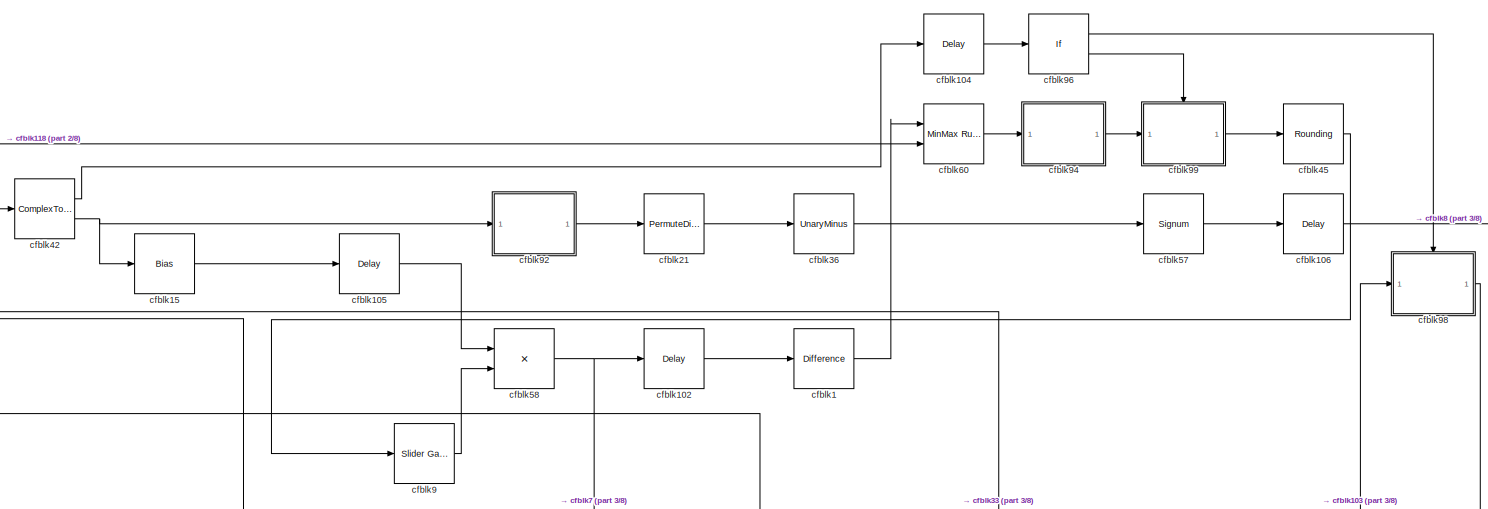
[diagram: root canvas - part 1/8, top center region]
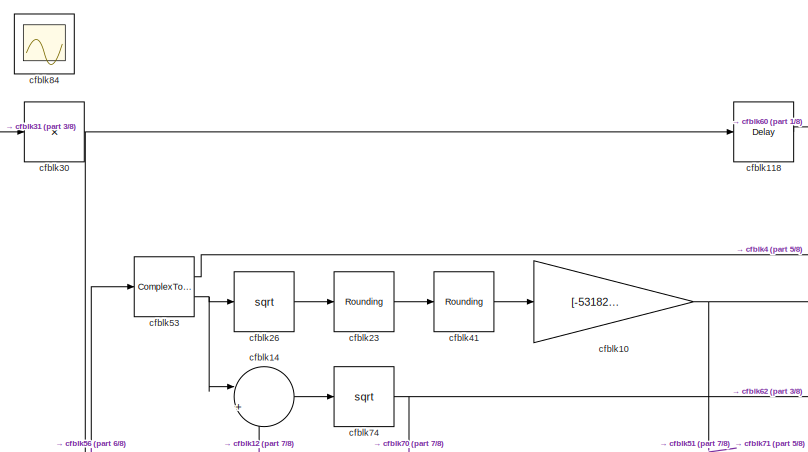
[diagram: root canvas - part 2/8, top left region]
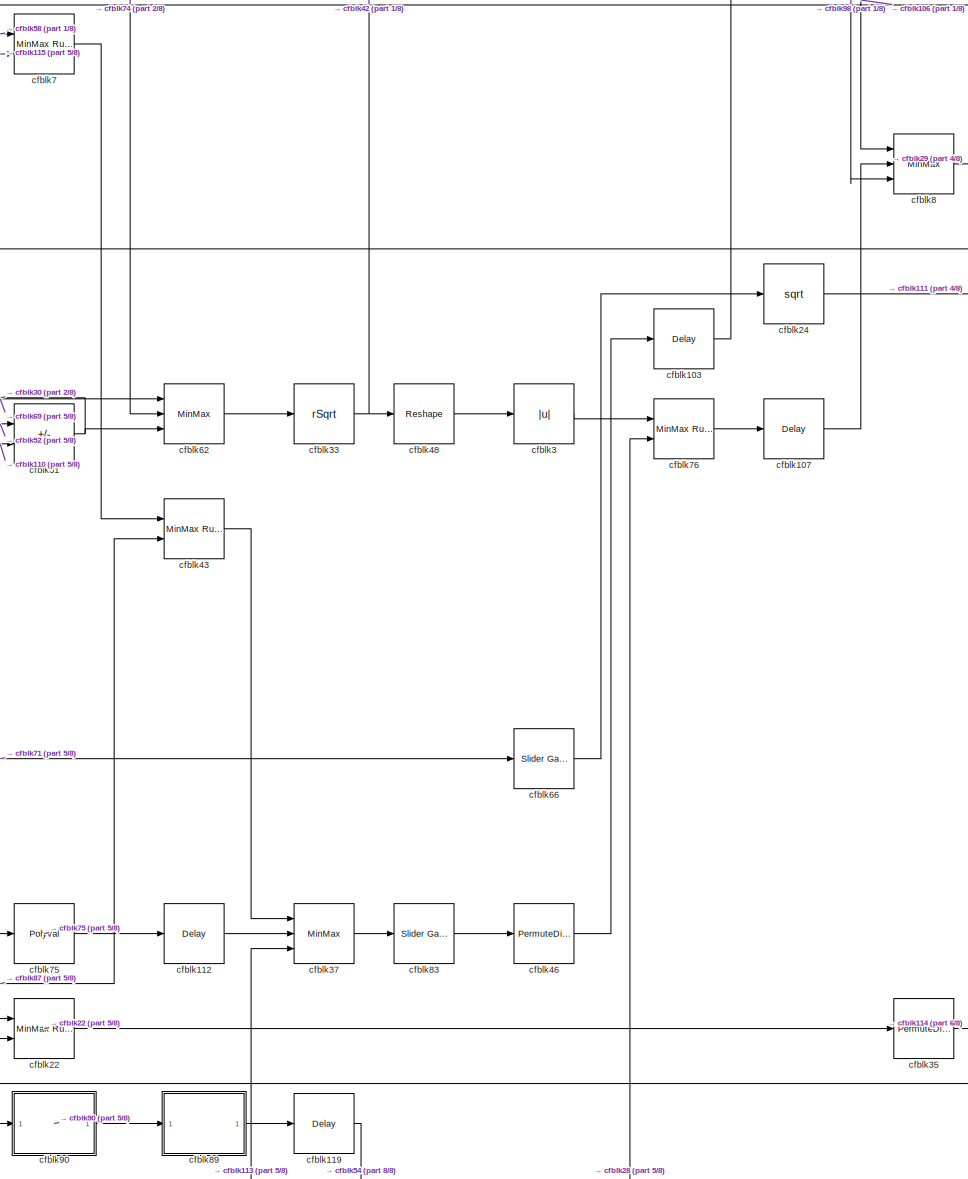
[diagram: root canvas - part 3/8, central region]
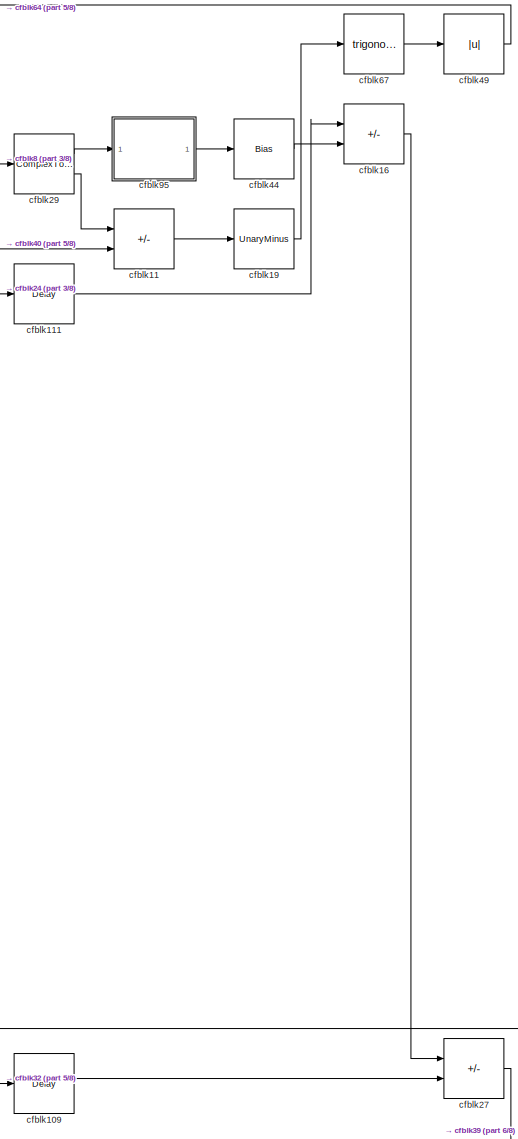
[diagram: root canvas - part 4/8, middle right region]
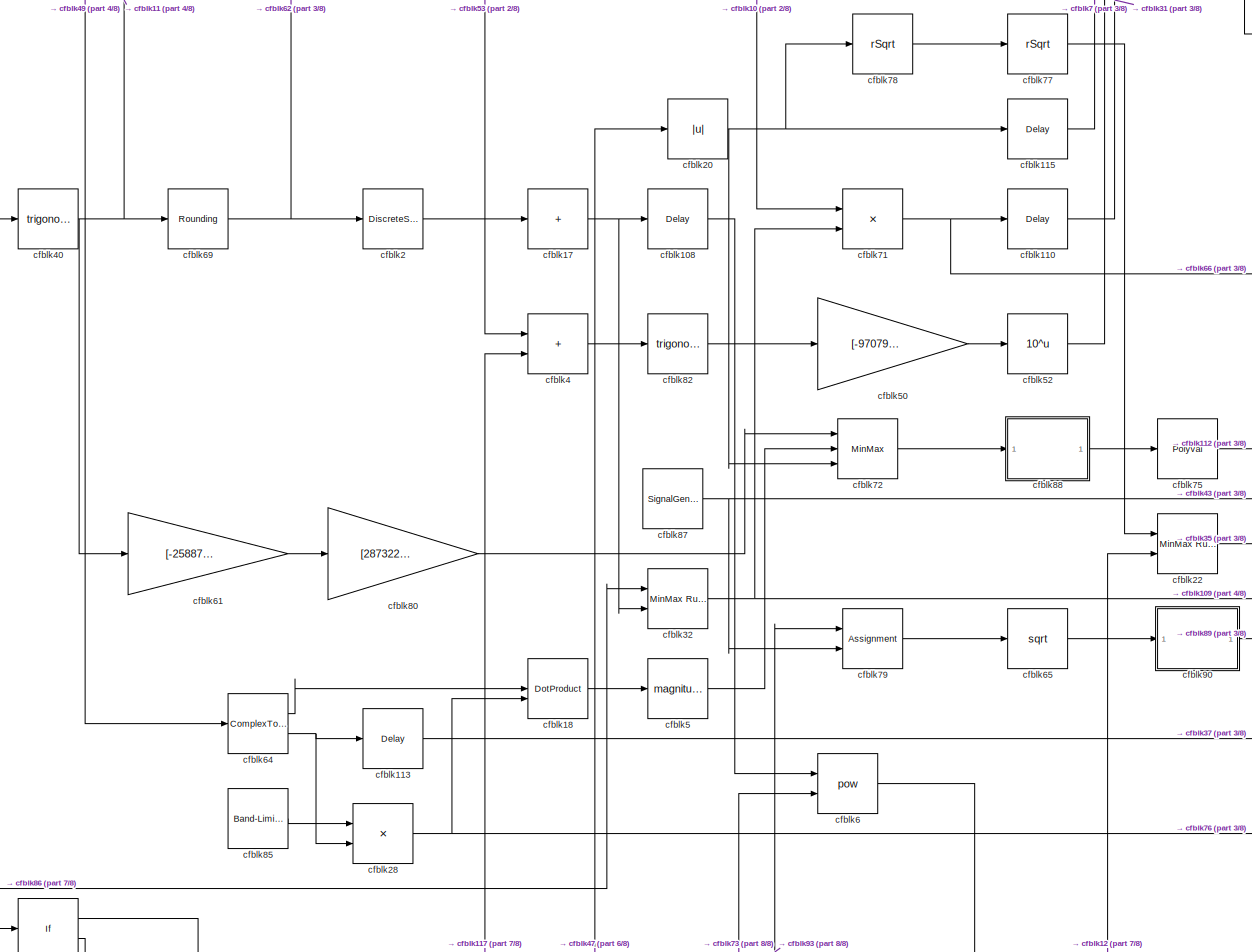
[diagram: root canvas - part 5/8, central region]
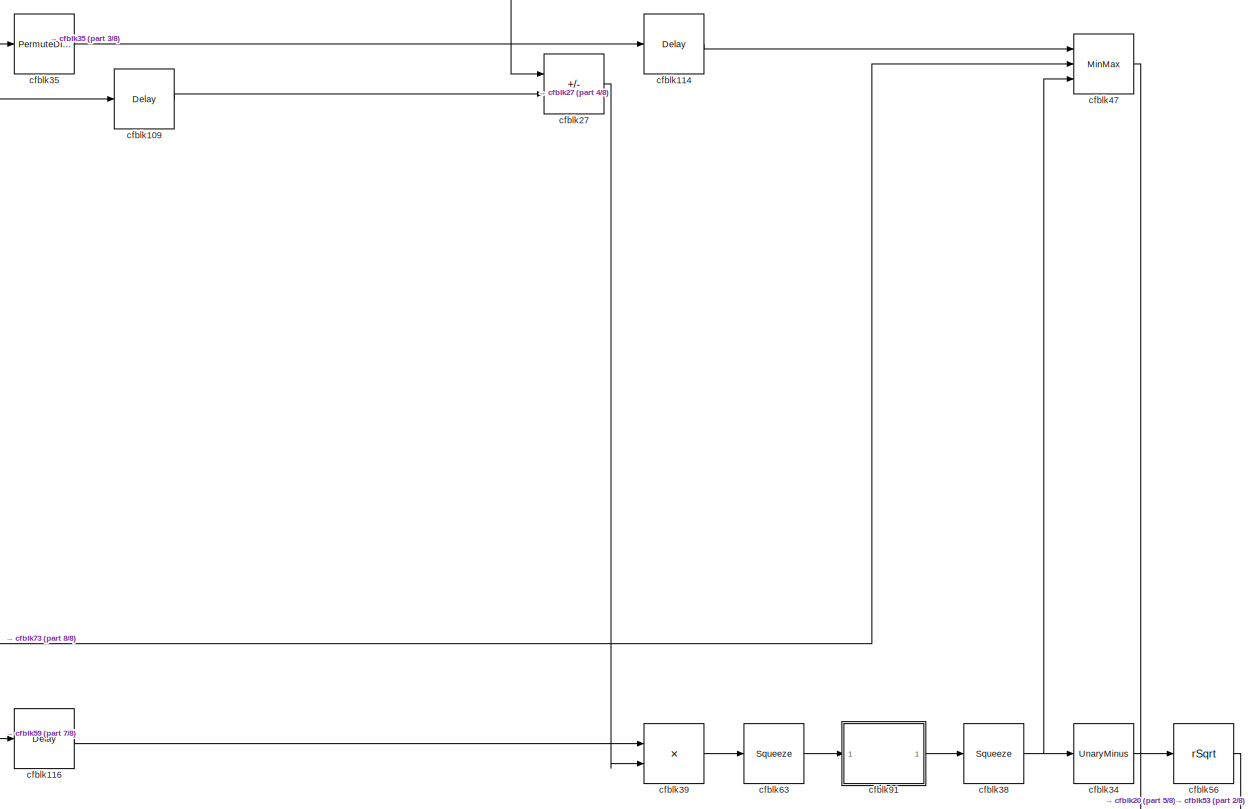
[diagram: root canvas - part 6/8, bottom right region]
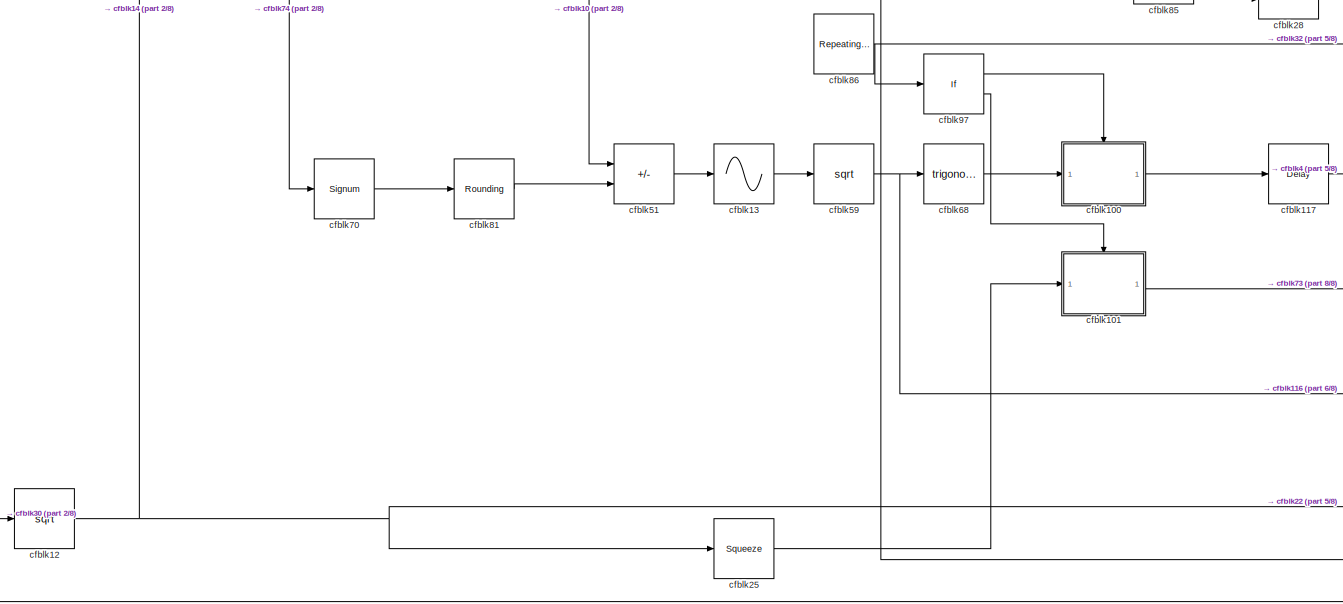
[diagram: root canvas - part 7/8, bottom left region]
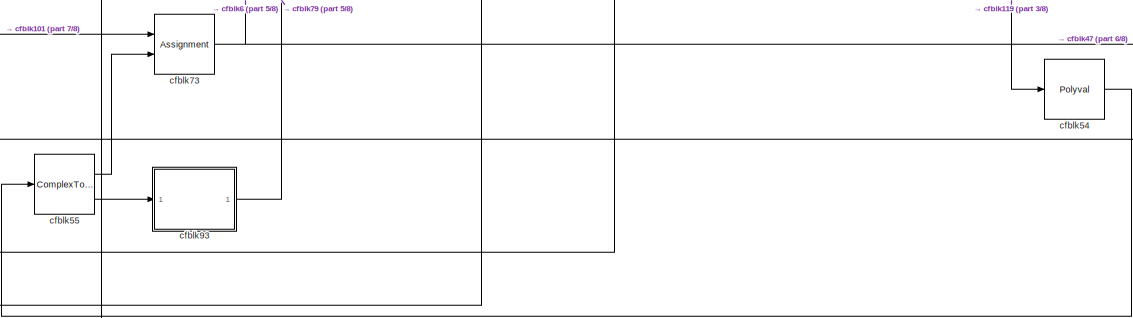
[diagram: root canvas - part 8/8, bottom center region]
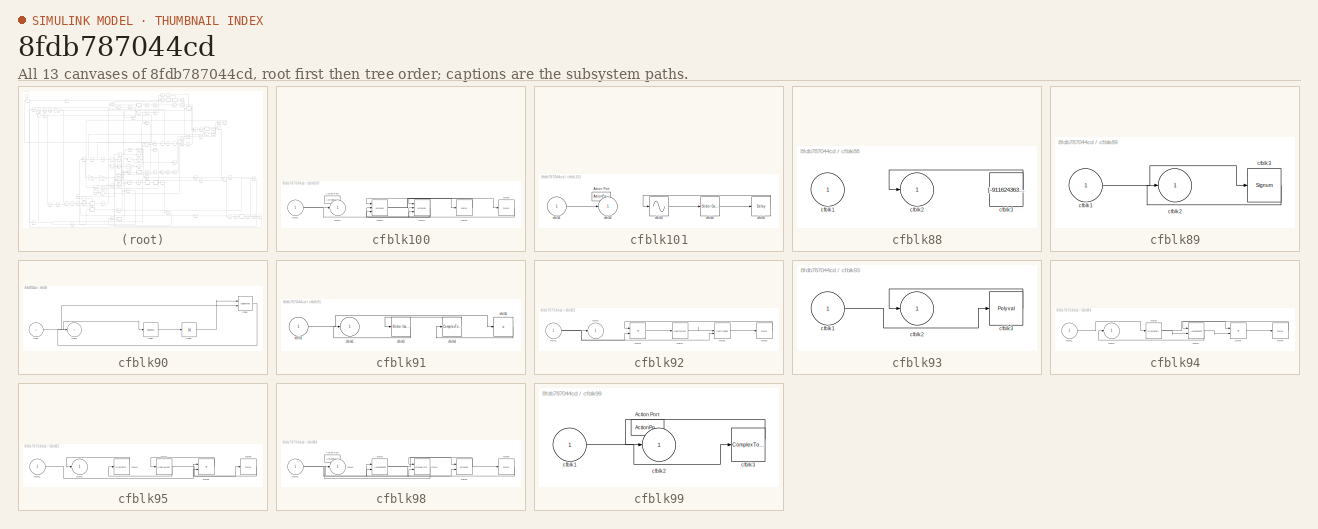
[diagram: thumbnail index - all 13 canvases of the model, root first then tree order]
MODEL slx_8fdb787044cd
KIND model
CONFIG AbsTol = auto
CONFIG EnableMultiTasking = off
CONFIG FixedStep = auto
CONFIG MaxStep = auto
CONFIG MinStep = auto
CONFIG RelTol = 1e-3
CONFIG SampleTimeConstraint = Unconstrained
CONFIG SolverName = VariableStepAuto
CONFIG StartTime = 0.0
CONFIG StopTime = 10.0
BLOCK [Reference] cfblk1  REF=simulink/Discrete/Difference
  Ports = [1, 1]
  SourceBlock = simulink/Discrete/Difference
  SourceProductBaseCode = SL
  SourceType = Difference
BLOCK [Gain] cfblk10
  Gain = [-531822452.645872]
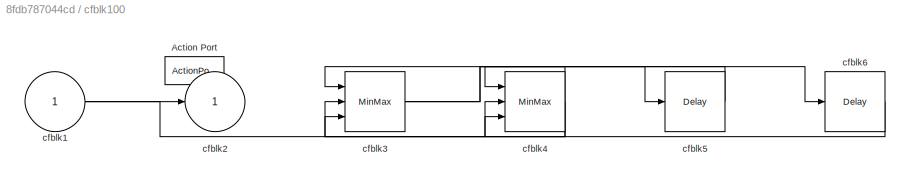
BLOCK [SubSystem] cfblk100
  Ports = [1, 1, 0, 0, 0, 0, 0, 1]
  RequestExecContextInheritance = off
  TreatAsAtomicUnit = on
BLOCK [ActionPort] cfblk100/Action Port
  ActionPortLabel = if(u1 >= 0)
BLOCK [Inport] cfblk100/cfblk1
BLOCK [Outport] cfblk100/cfblk2
BLOCK [MinMax] cfblk100/cfblk3
  Inputs = 3
  Ports = [3, 1]
BLOCK [MinMax] cfblk100/cfblk4
  Function = max
  Inputs = 3
  Ports = [3, 1]
BLOCK [Delay] cfblk100/cfblk5
  InputPortMap = u0
  Ports = [1, 1]
BLOCK [Delay] cfblk100/cfblk6
  InputPortMap = u0
  Ports = [1, 1]
BLOCK [SubSystem] cfblk101
  Ports = [1, 1, 0, 0, 0, 0, 0, 1]
  RequestExecContextInheritance = off
  TreatAsAtomicUnit = on
BLOCK [ActionPort] cfblk101/Action Port
  ActionPortLabel = else
BLOCK [Inport] cfblk101/cfblk1
BLOCK [Outport] cfblk101/cfblk2
BLOCK [Sin] cfblk101/cfblk3
  Ports = [1, 1]
  SampleTime = 0
  TimeSource = Use external signal
BLOCK [Reference] cfblk101/cfblk4  REF=simulink/Math
Operations/Slider
Gain
  Ports = [1, 1]
  SourceBlock = simulink/Math\nOperations/Slider\nGain
  SourceProductBaseCode = SL
  SourceType = Slider Gain
BLOCK [Delay] cfblk101/cfblk5
  InputPortMap = u0
  Ports = [1, 1]
BLOCK [Delay] cfblk102
  InputPortMap = u0
  Ports = [1, 1]
  SampleTime = 1
BLOCK [Delay] cfblk103
  InputPortMap = u0
  Ports = [1, 1]
  SampleTime = 1
BLOCK [Delay] cfblk104
  InputPortMap = u0
  Ports = [1, 1]
  SampleTime = 1
BLOCK [Delay] cfblk105
  InputPortMap = u0
  Ports = [1, 1]
  SampleTime = 1
BLOCK [Delay] cfblk106
  InputPortMap = u0
  Ports = [1, 1]
  SampleTime = 1
BLOCK [Delay] cfblk107
  InputPortMap = u0
  Ports = [1, 1]
  SampleTime = 1
BLOCK [Delay] cfblk108
  InputPortMap = u0
  Ports = [1, 1]
  SampleTime = 1
BLOCK [Delay] cfblk109
  InputPortMap = u0
  Ports = [1, 1]
  SampleTime = 1
BLOCK [Sum] cfblk11
  IconShape = rectangular
  Inputs = +-
  Ports = [2, 1]
BLOCK [Delay] cfblk110
  InputPortMap = u0
  Ports = [1, 1]
  SampleTime = 1
BLOCK [Delay] cfblk111
  InputPortMap = u0
  Ports = [1, 1]
  SampleTime = 1
BLOCK [Delay] cfblk112
  InputPortMap = u0
  Ports = [1, 1]
  SampleTime = 1
BLOCK [Delay] cfblk113
  InputPortMap = u0
  Ports = [1, 1]
  SampleTime = 1
BLOCK [Delay] cfblk114
  InputPortMap = u0
  Ports = [1, 1]
  SampleTime = 1
BLOCK [Delay] cfblk115
  InputPortMap = u0
  Ports = [1, 1]
  SampleTime = 1
BLOCK [Delay] cfblk116
  InputPortMap = u0
  Ports = [1, 1]
  SampleTime = 1
BLOCK [Delay] cfblk117
  InputPortMap = u0
  Ports = [1, 1]
  SampleTime = 1
BLOCK [Delay] cfblk118
  InputPortMap = u0
  Ports = [1, 1]
  SampleTime = 1
BLOCK [Delay] cfblk119
  InputPortMap = u0
  Ports = [1, 1]
  SampleTime = 1
BLOCK [Sqrt] cfblk12
BLOCK [Sin] cfblk13
  Ports = [1, 1]
  SampleTime = 0
  TimeSource = Use external signal
BLOCK [Sum] cfblk14
  Inputs = |++
  Ports = [2, 1]
BLOCK [Bias] cfblk15
  Bias = [104830006.738759]
  SaturateOnIntegerOverflow = off
BLOCK [Sum] cfblk16
  IconShape = rectangular
  Inputs = +-
  Ports = [2, 1]
BLOCK [Sum] cfblk17
  IconShape = rectangular
  Inputs = +
  Ports = [1, 1]
BLOCK [DotProduct] cfblk18
  OutDataTypeStr = Inherit: Inherit via internal rule
BLOCK [UnaryMinus] cfblk19
BLOCK [DiscreteStateSpace] cfblk2
BLOCK [Abs] cfblk20
  SaturateOnIntegerOverflow = off
BLOCK [PermuteDimensions] cfblk21
BLOCK [Reference] cfblk22  REF=simulink/Math
Operations/MinMax
Running
Resettable
  Ports = [2, 1]
  SourceBlock = simulink/Math\nOperations/MinMax\nRunning\nResettable
  SourceProductBaseCode = SL
  SourceType = MinMax Running Resettable
BLOCK [Rounding] cfblk23
BLOCK [Sqrt] cfblk24
BLOCK [Squeeze] cfblk25
BLOCK [Sqrt] cfblk26
BLOCK [Sum] cfblk27
  IconShape = rectangular
  Inputs = --
  Ports = [2, 1]
BLOCK [Product] cfblk28
  Inputs = **
  Ports = [2, 1]
BLOCK [ComplexToRealImag] cfblk29
  Ports = [1, 2]
BLOCK [Abs] cfblk3
  SaturateOnIntegerOverflow = off
BLOCK [Product] cfblk30
  Inputs = *
  Ports = [1, 1]
BLOCK [Sum] cfblk31
  IconShape = rectangular
  Inputs = -+
  Ports = [2, 1]
BLOCK [Reference] cfblk32  REF=simulink/Math
Operations/MinMax
Running
Resettable
  Ports = [2, 1]
  SourceBlock = simulink/Math\nOperations/MinMax\nRunning\nResettable
  SourceProductBaseCode = SL
  SourceType = MinMax Running Resettable
BLOCK [Sqrt] cfblk33
  AlgorithmType = Newton-Raphson
  Operator = rSqrt
BLOCK [UnaryMinus] cfblk34
BLOCK [PermuteDimensions] cfblk35
BLOCK [UnaryMinus] cfblk36
BLOCK [MinMax] cfblk37
  Function = max
  Inputs = 3
  Ports = [3, 1]
BLOCK [Squeeze] cfblk38
BLOCK [Product] cfblk39
  Ports = [2, 1]
BLOCK [Sum] cfblk4
  IconShape = rectangular
  Ports = [2, 1]
BLOCK [Trigonometry] cfblk40
  Ports = [1, 1]
BLOCK [Rounding] cfblk41
BLOCK [ComplexToRealImag] cfblk42
  Ports = [1, 2]
BLOCK [Reference] cfblk43  REF=simulink/Math
Operations/MinMax
Running
Resettable
  Ports = [2, 1]
  SourceBlock = simulink/Math\nOperations/MinMax\nRunning\nResettable
  SourceProductBaseCode = SL
  SourceType = MinMax Running Resettable
BLOCK [Bias] cfblk44
  Bias = [46526396.097413]
  SaturateOnIntegerOverflow = off
BLOCK [Rounding] cfblk45
BLOCK [PermuteDimensions] cfblk46
BLOCK [MinMax] cfblk47
  Function = max
  Inputs = 3
  Ports = [3, 1]
BLOCK [Reshape] cfblk48
  Ports = [1, 1]
BLOCK [Abs] cfblk49
  SaturateOnIntegerOverflow = off
BLOCK [Math] cfblk5
  Operator = magnitude^2
  Ports = [1, 1]
BLOCK [Gain] cfblk50
  Gain = [-97079901.726537]
BLOCK [Sum] cfblk51
  IconShape = rectangular
  Inputs = +-
  Ports = [2, 1]
BLOCK [Math] cfblk52
  Operator = 10^u
  Ports = [1, 1]
BLOCK [ComplexToRealImag] cfblk53
  Ports = [1, 2]
BLOCK [Polyval] cfblk54
  Coefs = [ +2.081618890e-019, -1.441693666e-014, +4.719686976e-010, -8.536869453e-006, +1.621573104e-001, -8.087801117e+001 ]
BLOCK [ComplexToMagnitudeAngle] cfblk55
  Ports = [1, 2]
BLOCK [Sqrt] cfblk56
  AlgorithmType = Newton-Raphson
  Operator = rSqrt
BLOCK [Signum] cfblk57
BLOCK [Product] cfblk58
  Ports = [2, 1]
BLOCK [Sqrt] cfblk59
BLOCK [Math] cfblk6
  Operator = pow
  Ports = [2, 1]
BLOCK [Reference] cfblk60  REF=simulink/Math
Operations/MinMax
Running
Resettable
  Ports = [2, 1]
  SourceBlock = simulink/Math\nOperations/MinMax\nRunning\nResettable
  SourceProductBaseCode = SL
  SourceType = MinMax Running Resettable
BLOCK [Gain] cfblk61
  Gain = [-258877291.943940]
BLOCK [MinMax] cfblk62
  Inputs = 3
  Ports = [3, 1]
BLOCK [Squeeze] cfblk63
BLOCK [ComplexToMagnitudeAngle] cfblk64
  Ports = [1, 2]
BLOCK [Sqrt] cfblk65
BLOCK [Reference] cfblk66  REF=simulink/Math
Operations/Slider
Gain
  Ports = [1, 1]
  SourceBlock = simulink/Math\nOperations/Slider\nGain
  SourceProductBaseCode = SL
  SourceType = Slider Gain
BLOCK [Trigonometry] cfblk67
  Ports = [1, 1]
BLOCK [Trigonometry] cfblk68
  Ports = [1, 1]
BLOCK [Rounding] cfblk69
BLOCK [Reference] cfblk7  REF=simulink/Math
Operations/MinMax
Running
Resettable
  Ports = [2, 1]
  SourceBlock = simulink/Math\nOperations/MinMax\nRunning\nResettable
  SourceProductBaseCode = SL
  SourceType = MinMax Running Resettable
BLOCK [Signum] cfblk70
BLOCK [Product] cfblk71
  Inputs = **
  Ports = [2, 1]
BLOCK [MinMax] cfblk72
  Inputs = 3
  Ports = [3, 1]
BLOCK [Assignment] cfblk73
  DiagnosticForDimensions = Warning
  IndexOptions = Index vector (dialog)
  Indices = 1
  OutputSizes = 1
  Ports = [2, 1]
BLOCK [Sqrt] cfblk74
BLOCK [Polyval] cfblk75
  Coefs = [ +2.081618890e-019, -1.441693666e-014, +4.719686976e-010, -8.536869453e-006, +1.621573104e-001, -8.087801117e+001 ]
BLOCK [Reference] cfblk76  REF=simulink/Math
Operations/MinMax
Running
Resettable
  Ports = [2, 1]
  SourceBlock = simulink/Math\nOperations/MinMax\nRunning\nResettable
  SourceProductBaseCode = SL
  SourceType = MinMax Running Resettable
BLOCK [Sqrt] cfblk77
  AlgorithmType = Newton-Raphson
  Operator = rSqrt
BLOCK [Sqrt] cfblk78
  AlgorithmType = Newton-Raphson
  Operator = rSqrt
BLOCK [Assignment] cfblk79
  DiagnosticForDimensions = Warning
  IndexOptions = Index vector (dialog)
  Indices = 1
  OutputSizes = 1
  Ports = [2, 1]
BLOCK [MinMax] cfblk8
  Inputs = 3
  Ports = [3, 1]
BLOCK [Gain] cfblk80
  Gain = [287322177.333645]
BLOCK [Rounding] cfblk81
BLOCK [Trigonometry] cfblk82
  Ports = [1, 1]
BLOCK [Reference] cfblk83  REF=simulink/Math
Operations/Slider
Gain
  Ports = [1, 1]
  SourceBlock = simulink/Math\nOperations/Slider\nGain
  SourceProductBaseCode = SL
  SourceType = Slider Gain
BLOCK [Scope] cfblk84
  Floating = on
  NumInputPorts = 1
  Ports = []
  ScopeSpecificationString = Simulink.scopes.TimeScopeBlockCfg('CurrentConfiguration', extmgr.ConfigurationSet(extmgr.Configuration('Core','General UI',true),extmgr.Configuration('Core','Source UI',true),extmgr.Configuration('Sources','WiredSimulink',true),extmgr.Configuration('Visuals','Time Domain',true),extmgr.Configuration('Tools','Plot Navigation',true),extmgr.Configuration('Tools','Measurements',true)),'Version','2021b'...<+1ch>
BLOCK [Reference] cfblk85  REF=simulink/Sources/Band-Limited
White Noise
  Ports = [0, 1]
  SourceBlock = simulink/Sources/Band-Limited\nWhite Noise
  SourceProductBaseCode = SL
  SourceType = Band-Limited White Noise.
BLOCK [Reference] cfblk86  REF=simulink/Sources/Repeating
Sequence
Interpolated
  Ports = [0, 1]
  SourceBlock = simulink/Sources/Repeating\nSequence\nInterpolated
  SourceProductBaseCode = SL
  SourceType = Repeating Sequence Interpolated
BLOCK [SignalGenerator] cfblk87
  Amplitude = [478990331.282242]
  Ports = [0, 1]
  Units = rad/sec
  WaveForm = square
BLOCK [SubSystem] cfblk88
  Ports = [1, 1]
  RequestExecContextInheritance = off
BLOCK [Inport] cfblk88/cfblk1
BLOCK [Outport] cfblk88/cfblk2
BLOCK [Constant] cfblk88/cfblk3
  SampleTime = 1
  Value = [-911624363.995625]
BLOCK [SubSystem] cfblk89
  Ports = [1, 1]
  RequestExecContextInheritance = off
BLOCK [Inport] cfblk89/cfblk1
BLOCK [Outport] cfblk89/cfblk2
BLOCK [Signum] cfblk89/cfblk3
BLOCK [Reference] cfblk9  REF=simulink/Math
Operations/Slider
Gain
  Ports = [1, 1]
  SourceBlock = simulink/Math\nOperations/Slider\nGain
  SourceProductBaseCode = SL
  SourceType = Slider Gain
BLOCK [SubSystem] cfblk90
  Ports = [1, 1]
  RequestExecContextInheritance = off
BLOCK [Inport] cfblk90/cfblk1
BLOCK [Outport] cfblk90/cfblk2
BLOCK [Assignment] cfblk90/cfblk3
  DiagnosticForDimensions = Warning
  IndexOptions = Index vector (dialog)
  Indices = 1
  OutputSizes = 1
  Ports = [2, 1]
BLOCK [Squeeze] cfblk90/cfblk4
BLOCK [Abs] cfblk90/cfblk5
  SaturateOnIntegerOverflow = off
BLOCK [SubSystem] cfblk91
  Ports = [1, 1]
  RequestExecContextInheritance = off
BLOCK [Inport] cfblk91/cfblk1
BLOCK [Outport] cfblk91/cfblk2
BLOCK [Reference] cfblk91/cfblk3  REF=simulink/Math
Operations/Slider
Gain
  Ports = [1, 1]
  SourceBlock = simulink/Math\nOperations/Slider\nGain
  SourceProductBaseCode = SL
  SourceType = Slider Gain
BLOCK [ComplexToRealImag] cfblk91/cfblk4
  Ports = [1, 2]
BLOCK [Product] cfblk91/cfblk5
  Inputs = *
  Ports = [1, 1]
BLOCK [SubSystem] cfblk92
  Ports = [1, 1]
  RequestExecContextInheritance = off
BLOCK [Inport] cfblk92/cfblk1
BLOCK [Outport] cfblk92/cfblk2
BLOCK [Product] cfblk92/cfblk3
  Ports = [2, 1]
BLOCK [UnaryMinus] cfblk92/cfblk4
BLOCK [DotProduct] cfblk92/cfblk5
  OutDataTypeStr = Inherit: Inherit via internal rule
BLOCK [Delay] cfblk92/cfblk6
  InputPortMap = u0
  Ports = [1, 1]
  SampleTime = 1
BLOCK [SubSystem] cfblk93
  Ports = [1, 1]
  RequestExecContextInheritance = off
BLOCK [Inport] cfblk93/cfblk1
BLOCK [Outport] cfblk93/cfblk2
BLOCK [Polyval] cfblk93/cfblk3
  Coefs = [ +2.081618890e-019, -1.441693666e-014, +4.719686976e-010, -8.536869453e-006, +1.621573104e-001, -8.087801117e+001 ]
BLOCK [SubSystem] cfblk94
  Ports = [1, 1]
  RequestExecContextInheritance = off
BLOCK [Inport] cfblk94/cfblk1
BLOCK [Outport] cfblk94/cfblk2
BLOCK [DiscreteFilter] cfblk94/cfblk3
  InputPortMap = u0
  Ports = [1, 1]
  SampleTime = 1
BLOCK [Assignment] cfblk94/cfblk4
  DiagnosticForDimensions = Warning
  IndexOptions = Index vector (dialog)
  Indices = 1
  OutputSizes = 1
  Ports = [2, 1]
BLOCK [Product] cfblk94/cfblk5
  Ports = [2, 1]
BLOCK [Delay] cfblk94/cfblk6
  InputPortMap = u0
  Ports = [1, 1]
  SampleTime = 1
BLOCK [SubSystem] cfblk95
  Ports = [1, 1]
  RequestExecContextInheritance = off
BLOCK [Inport] cfblk95/cfblk1
BLOCK [Outport] cfblk95/cfblk2
BLOCK [DiscreteTransferFcn] cfblk95/cfblk3
  InputPortMap = u0
  Ports = [1, 1]
  SampleTime = 1
BLOCK [UnaryMinus] cfblk95/cfblk4
BLOCK [Product] cfblk95/cfblk5
  Ports = [2, 1]
BLOCK [Delay] cfblk95/cfblk6
  InputPortMap = u0
  Ports = [1, 1]
  SampleTime = 1
BLOCK [If] cfblk96
  IfExpression = u1 >= 0
  Ports = [1, 2]
  SampleTime = 1
BLOCK [If] cfblk97
  IfExpression = u1 >= 0
  Ports = [1, 2]
  SampleTime = 1
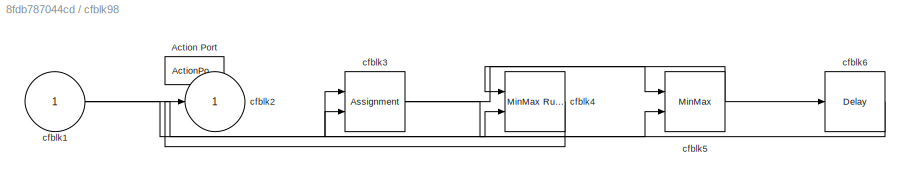
BLOCK [SubSystem] cfblk98
  Ports = [1, 1, 0, 0, 0, 0, 0, 1]
  RequestExecContextInheritance = off
  TreatAsAtomicUnit = on
BLOCK [ActionPort] cfblk98/Action Port
  ActionPortLabel = if(u1 >= 0)
BLOCK [Inport] cfblk98/cfblk1
BLOCK [Outport] cfblk98/cfblk2
BLOCK [Assignment] cfblk98/cfblk3
  DiagnosticForDimensions = Warning
  IndexOptions = Index vector (dialog)
  Indices = 1
  OutputSizes = 1
  Ports = [2, 1]
BLOCK [Reference] cfblk98/cfblk4  REF=simulink/Math
Operations/MinMax
Running
Resettable
  Ports = [2, 1]
  SourceBlock = simulink/Math\nOperations/MinMax\nRunning\nResettable
  SourceProductBaseCode = SL
  SourceType = MinMax Running Resettable
BLOCK [MinMax] cfblk98/cfblk5
  Inputs = 2
  Ports = [2, 1]
BLOCK [Delay] cfblk98/cfblk6
  InputPortMap = u0
  Ports = [1, 1]
BLOCK [SubSystem] cfblk99
  Ports = [1, 1, 0, 0, 0, 0, 0, 1]
  RequestExecContextInheritance = off
  TreatAsAtomicUnit = on
BLOCK [ActionPort] cfblk99/Action Port
  ActionPortLabel = else
BLOCK [Inport] cfblk99/cfblk1
BLOCK [Outport] cfblk99/cfblk2
BLOCK [ComplexToMagnitudeAngle] cfblk99/cfblk3
  Ports = [1, 2]
NET cfblk100/cfblk1:1 -> cfblk100/cfblk2:1, cfblk100/cfblk4:2
NET cfblk100/cfblk3:1 -> cfblk100/cfblk5:1, cfblk100/cfblk6:1
NET cfblk100/cfblk4:1 -> cfblk100/cfblk3:1, cfblk100/cfblk3:2, cfblk100/cfblk3:3
LINE cfblk100/cfblk5:1 -> cfblk100/cfblk4:1
LINE cfblk100/cfblk6:1 -> cfblk100/cfblk4:3
LINE cfblk100:1 -> cfblk117:1
LINE cfblk101/cfblk1:1 -> cfblk101/cfblk2:1
LINE cfblk101/cfblk3:1 -> cfblk101/cfblk4:1
LINE cfblk101/cfblk4:1 -> cfblk101/cfblk5:1
LINE cfblk101/cfblk5:1 -> cfblk101/cfblk3:1
LINE cfblk101:1 -> cfblk73:1
LINE cfblk102:1 -> cfblk1:1
LINE cfblk103:1 -> cfblk98:1
LINE cfblk104:1 -> cfblk96:1
LINE cfblk105:1 -> cfblk58:1
LINE cfblk106:1 -> cfblk8:1
LINE cfblk107:1 -> cfblk8:2
LINE cfblk108:1 -> cfblk6:1
LINE cfblk109:1 -> cfblk27:2
NET cfblk10:1 -> cfblk51:1, cfblk71:1
LINE cfblk110:1 -> cfblk31:2
LINE cfblk111:1 -> cfblk16:1
LINE cfblk112:1 -> cfblk37:2
LINE cfblk113:1 -> cfblk37:3
LINE cfblk114:1 -> cfblk47:1
LINE cfblk115:1 -> cfblk7:2
LINE cfblk116:1 -> cfblk39:1
LINE cfblk117:1 -> cfblk4:2
LINE cfblk118:1 -> cfblk60:2
LINE cfblk119:1 -> cfblk54:1
LINE cfblk11:1 -> cfblk19:1
NET cfblk12:1 -> cfblk14:2, cfblk22:2, cfblk25:1
LINE cfblk13:1 -> cfblk59:1
LINE cfblk14:1 -> cfblk74:1
LINE cfblk15:1 -> cfblk105:1
LINE cfblk16:1 -> cfblk27:1
NET cfblk17:1 -> cfblk108:1, cfblk32:2
LINE cfblk18:1 -> cfblk5:1
LINE cfblk19:1 -> cfblk67:1
LINE cfblk1:1 -> cfblk60:1
NET cfblk20:1 -> cfblk115:1, cfblk72:3, cfblk78:1
LINE cfblk21:1 -> cfblk36:1
LINE cfblk22:1 -> cfblk35:1
LINE cfblk23:1 -> cfblk41:1
LINE cfblk24:1 -> cfblk111:1
LINE cfblk25:1 -> cfblk101:1
LINE cfblk26:1 -> cfblk23:1
LINE cfblk27:1 -> cfblk39:2
NET cfblk28:1 -> cfblk18:2, cfblk76:2
LINE cfblk29:1 -> cfblk95:1
LINE cfblk29:2 -> cfblk11:1
LINE cfblk2:1 -> cfblk17:1
NET cfblk30:1 -> cfblk118:1, cfblk12:1
NET cfblk31:1 -> cfblk30:1, cfblk62:3
NET cfblk32:1 -> cfblk109:1, cfblk71:2
NET cfblk33:1 -> cfblk42:1, cfblk48:1
LINE cfblk34:1 -> cfblk56:1
LINE cfblk35:1 -> cfblk114:1
LINE cfblk36:1 -> cfblk57:1
LINE cfblk37:1 -> cfblk83:1
NET cfblk38:1 -> cfblk34:1, cfblk47:3
LINE cfblk39:1 -> cfblk63:1
LINE cfblk3:1 -> cfblk76:1
NET cfblk40:1 -> cfblk11:2, cfblk61:1, cfblk69:1
LINE cfblk41:1 -> cfblk10:1
LINE cfblk42:1 -> cfblk104:1
NET cfblk42:2 -> cfblk15:1, cfblk92:1
LINE cfblk43:1 -> cfblk37:1
LINE cfblk44:1 -> cfblk16:2
LINE cfblk45:1 -> cfblk9:1
LINE cfblk46:1 -> cfblk103:1
LINE cfblk47:1 -> cfblk20:1
LINE cfblk48:1 -> cfblk3:1
LINE cfblk49:1 -> cfblk64:1
LINE cfblk4:1 -> cfblk82:1
LINE cfblk50:1 -> cfblk52:1
LINE cfblk51:1 -> cfblk13:1
LINE cfblk52:1 -> cfblk31:1
LINE cfblk53:1 -> cfblk4:1
NET cfblk53:2 -> cfblk14:1, cfblk26:1
LINE cfblk54:1 -> cfblk55:1
LINE cfblk55:1 -> cfblk73:2
LINE cfblk55:2 -> cfblk93:1
LINE cfblk56:1 -> cfblk53:1
LINE cfblk57:1 -> cfblk106:1
NET cfblk58:1 -> cfblk102:1, cfblk7:1
NET cfblk59:1 -> cfblk116:1, cfblk68:1
LINE cfblk5:1 -> cfblk72:2
LINE cfblk60:1 -> cfblk94:1
LINE cfblk61:1 -> cfblk80:1
LINE cfblk62:1 -> cfblk33:1
LINE cfblk63:1 -> cfblk91:1
LINE cfblk64:1 -> cfblk18:1
NET cfblk64:2 -> cfblk113:1, cfblk28:2
LINE cfblk65:1 -> cfblk90:1
LINE cfblk66:1 -> cfblk24:1
LINE cfblk67:1 -> cfblk49:1
LINE cfblk68:1 -> cfblk100:1
NET cfblk69:1 -> cfblk2:1, cfblk62:1
LINE cfblk6:1 -> cfblk40:1
LINE cfblk70:1 -> cfblk81:1
NET cfblk71:1 -> cfblk110:1, cfblk66:1
LINE cfblk72:1 -> cfblk88:1
NET cfblk73:1 -> cfblk47:2, cfblk6:2
NET cfblk74:1 -> cfblk62:2, cfblk70:1
LINE cfblk75:1 -> cfblk112:1
LINE cfblk76:1 -> cfblk107:1
LINE cfblk77:1 -> cfblk22:1
LINE cfblk78:1 -> cfblk77:1
LINE cfblk79:1 -> cfblk65:1
LINE cfblk7:1 -> cfblk43:1
LINE cfblk80:1 -> cfblk72:1
LINE cfblk81:1 -> cfblk51:2
LINE cfblk82:1 -> cfblk50:1
LINE cfblk83:1 -> cfblk46:1
LINE cfblk85:1 -> cfblk28:1
NET cfblk86:1 -> cfblk32:1, cfblk97:1
NET cfblk87:1 -> cfblk43:2, cfblk79:2
LINE cfblk88/cfblk3:1 -> cfblk88/cfblk2:1
LINE cfblk88:1 -> cfblk75:1
LINE cfblk89/cfblk1:1 -> cfblk89/cfblk3:1
LINE cfblk89/cfblk3:1 -> cfblk89/cfblk2:1
LINE cfblk89:1 -> cfblk119:1
LINE cfblk8:1 -> cfblk29:1
NET cfblk90/cfblk1:1 -> cfblk90/cfblk3:2, cfblk90/cfblk4:1
LINE cfblk90/cfblk3:1 -> cfblk90/cfblk2:1
LINE cfblk90/cfblk4:1 -> cfblk90/cfblk5:1
LINE cfblk90/cfblk5:1 -> cfblk90/cfblk3:1
LINE cfblk90:1 -> cfblk89:1
LINE cfblk91/cfblk1:1 -> cfblk91/cfblk5:1
LINE cfblk91/cfblk3:1 -> cfblk91/cfblk2:1
LINE cfblk91/cfblk4:1 -> cfblk91/cfblk3:1
LINE cfblk91/cfblk5:1 -> cfblk91/cfblk4:1
LINE cfblk91:1 -> cfblk38:1
NET cfblk92/cfblk1:1 -> cfblk92/cfblk2:1, cfblk92/cfblk3:2, cfblk92/cfblk5:2
LINE cfblk92/cfblk3:1 -> cfblk92/cfblk4:1
LINE cfblk92/cfblk4:1 -> cfblk92/cfblk5:1
LINE cfblk92/cfblk5:1 -> cfblk92/cfblk6:1
LINE cfblk92/cfblk6:1 -> cfblk92/cfblk3:1
LINE cfblk92:1 -> cfblk21:1
LINE cfblk93/cfblk1:1 -> cfblk93/cfblk3:1
LINE cfblk93/cfblk3:1 -> cfblk93/cfblk2:1
LINE cfblk93:1 -> cfblk79:1
LINE cfblk94/cfblk1:1 -> cfblk94/cfblk3:1
NET cfblk94/cfblk3:1 -> cfblk94/cfblk4:2, cfblk94/cfblk5:1
NET cfblk94/cfblk4:1 -> cfblk94/cfblk2:1, cfblk94/cfblk5:2
LINE cfblk94/cfblk5:1 -> cfblk94/cfblk6:1
LINE cfblk94/cfblk6:1 -> cfblk94/cfblk4:1
LINE cfblk94:1 -> cfblk99:1
LINE cfblk95/cfblk1:1 -> cfblk95/cfblk5:1
LINE cfblk95/cfblk3:1 -> cfblk95/cfblk2:1
NET cfblk95/cfblk4:1 -> cfblk95/cfblk3:1, cfblk95/cfblk6:1
LINE cfblk95/cfblk5:1 -> cfblk95/cfblk4:1
LINE cfblk95/cfblk6:1 -> cfblk95/cfblk5:2
LINE cfblk95:1 -> cfblk44:1
LINE cfblk96:1 -> cfblk98:ifaction
LINE cfblk96:2 -> cfblk99:ifaction
LINE cfblk97:1 -> cfblk100:ifaction
LINE cfblk97:2 -> cfblk101:ifaction
NET cfblk98/cfblk1:1 -> cfblk98/cfblk3:1, cfblk98/cfblk4:2
NET cfblk98/cfblk3:1 -> cfblk98/cfblk5:1, cfblk98/cfblk5:2
LINE cfblk98/cfblk4:1 -> cfblk98/cfblk2:1
NET cfblk98/cfblk5:1 -> cfblk98/cfblk4:1, cfblk98/cfblk6:1
LINE cfblk98/cfblk6:1 -> cfblk98/cfblk3:2
LINE cfblk98:1 -> cfblk8:3
LINE cfblk99/cfblk1:1 -> cfblk99/cfblk3:1
LINE cfblk99/cfblk3:1 -> cfblk99/cfblk2:1
LINE cfblk99:1 -> cfblk45:1
LINE cfblk9:1 -> cfblk58:2
note: NET lines group one-source signal fan-out (src -> all destinations, sorted); 1:1 wires keep LINE
